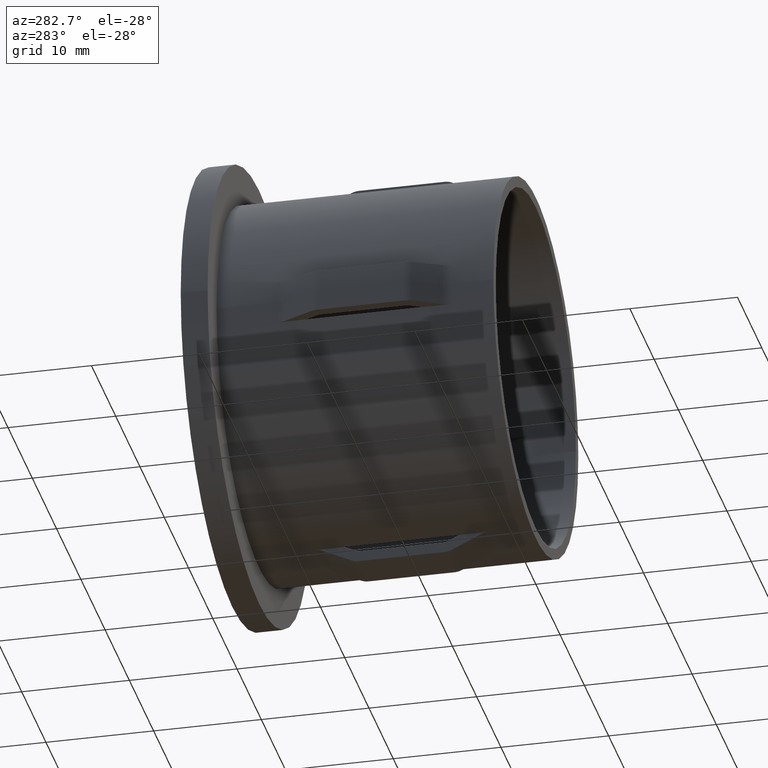
[diagram: clean part render]
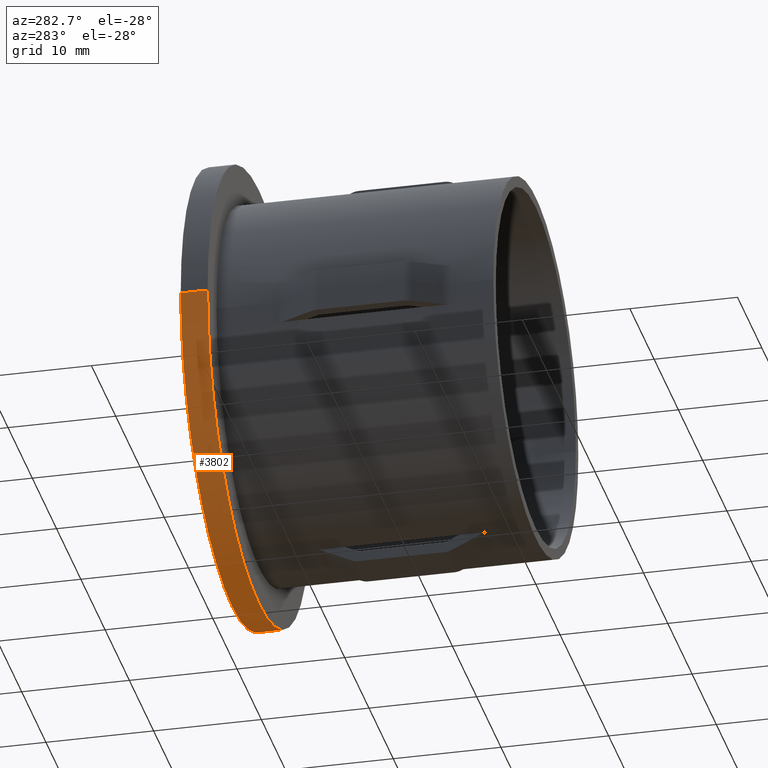
[diagram: same view with one face highlighted and labeled with its STEP entity id]
A machine part, auxiliary view. The second image highlights one B-rep face of the part: STEP entity #3802.
In plain terms, the highlighted cylindrical surface (partial cylindrical patch) has radius 21.2 mm, axis along (-0, 1, -0).
Its self-contained STEP definition (entity closure, byte-faithful):
#1096 = LINE ( 'NONE', #10251, #5305 ) ;
#1183 = ORIENTED_EDGE ( 'NONE', *, *, #9834, .F. ) ;
#1526 = AXIS2_PLACEMENT_3D ( 'NONE', #9158, #5112, #8293 ) ;
#2384 = CARTESIAN_POINT ( 'NONE',  ( 21.19999999999999600, 28.20000000000000300, 2.596251214192388400E-015 ) ) ;
#2852 = EDGE_CURVE ( 'NONE', #10365, #10777, #8045, .T. ) ;
#3527 = FACE_OUTER_BOUND ( 'NONE', #12270, .T. ) ;
#3802 = ADVANCED_FACE ( 'NONE', ( #3527 ), #4987, .T. ) ;
#3820 = EDGE_CURVE ( 'NONE', #11461, #10777, #1096, .T. ) ;
#3877 = ORIENTED_EDGE ( 'NONE', *, *, #4039, .T. ) ;
#4039 = EDGE_CURVE ( 'NONE', #11335, #11461, #12548, .T. ) ;
#4070 = CARTESIAN_POINT ( 'NONE',  ( 21.19999999999999900, 28.19999999999999900, 2.596251214192388800E-015 ) ) ;
#4987 = CYLINDRICAL_SURFACE ( 'NONE', #1526, 21.19999999999999600 ) ;
#5112 = DIRECTION ( 'NONE',  ( -1.714505518806297100E-016, 1.000000000000000000, -0.0000000000000000000 ) ) ;
#5206 = DIRECTION ( 'NONE',  ( -1.714505518806297100E-016, 1.000000000000000000, -0.0000000000000000000 ) ) ;
#5305 = VECTOR ( 'NONE', #5206, 1000.000000000000000 ) ;
#5437 = AXIS2_PLACEMENT_3D ( 'NONE', #12040, #8917, #11011 ) ;
#6363 = LINE ( 'NONE', #2384, #10390 ) ;
#6720 = DIRECTION ( 'NONE',  ( -1.714505518806297100E-016, 1.000000000000000000, -0.0000000000000000000 ) ) ;
#7542 = CARTESIAN_POINT ( 'NONE',  ( -2.449293598294702500E-016, 28.19999999999999600, 0.0000000000000000000 ) ) ;
#8045 = CIRCLE ( 'NONE', #10178, 21.19999999999999900 ) ;
#8293 = DIRECTION ( 'NONE',  ( -1.000000000000000000, -1.636531581110195700E-016, 0.0000000000000000000 ) ) ;
#8917 = DIRECTION ( 'NONE',  ( -1.714505518806297100E-016, 1.000000000000000000, -0.0000000000000000000 ) ) ;
#9158 = CARTESIAN_POINT ( 'NONE',  ( -2.449293598294708900E-016, 28.19999999999999900, 0.0000000000000000000 ) ) ;
#9360 = ORIENTED_EDGE ( 'NONE', *, *, #2852, .F. ) ;
#9834 = EDGE_CURVE ( 'NONE', #11335, #10365, #6363, .T. ) ;
#10178 = AXIS2_PLACEMENT_3D ( 'NONE', #7542, #12714, #11681 ) ;
#10251 = CARTESIAN_POINT ( 'NONE',  ( -21.19999999999999600, 28.19999999999999600, 0.0000000000000000000 ) ) ;
#10365 = VERTEX_POINT ( 'NONE', #4070 ) ;
#10390 = VECTOR ( 'NONE', #6720, 1000.000000000000000 ) ;
#10777 = VERTEX_POINT ( 'NONE', #12546 ) ;
#11011 = DIRECTION ( 'NONE',  ( -1.000000000000000000, -1.636531581110195700E-016, 0.0000000000000000000 ) ) ;
#11335 = VERTEX_POINT ( 'NONE', #11409 ) ;
#11409 = CARTESIAN_POINT ( 'NONE',  ( 21.19999999999999600, 25.69999999999999900, 2.596251214192388400E-015 ) ) ;
#11461 = VERTEX_POINT ( 'NONE', #12402 ) ;
#11681 = DIRECTION ( 'NONE',  ( -1.000000000000000000, -1.636531581110195400E-016, 0.0000000000000000000 ) ) ;
#12040 = CARTESIAN_POINT ( 'NONE',  ( 1.836970198721037800E-016, 25.69999999999999600, 0.0000000000000000000 ) ) ;
#12270 = EDGE_LOOP ( 'NONE', ( #1183, #3877, #12569, #9360 ) ) ;
#12402 = CARTESIAN_POINT ( 'NONE',  ( -21.19999999999999600, 25.69999999999999200, 0.0000000000000000000 ) ) ;
#12546 = CARTESIAN_POINT ( 'NONE',  ( -21.19999999999999900, 28.19999999999999200, 0.0000000000000000000 ) ) ;
#12548 = CIRCLE ( 'NONE', #5437, 21.19999999999999600 ) ;
#12569 = ORIENTED_EDGE ( 'NONE', *, *, #3820, .T. ) ;
#12714 = DIRECTION ( 'NONE',  ( -1.714505518806297100E-016, 1.000000000000000000, -0.0000000000000000000 ) ) ;